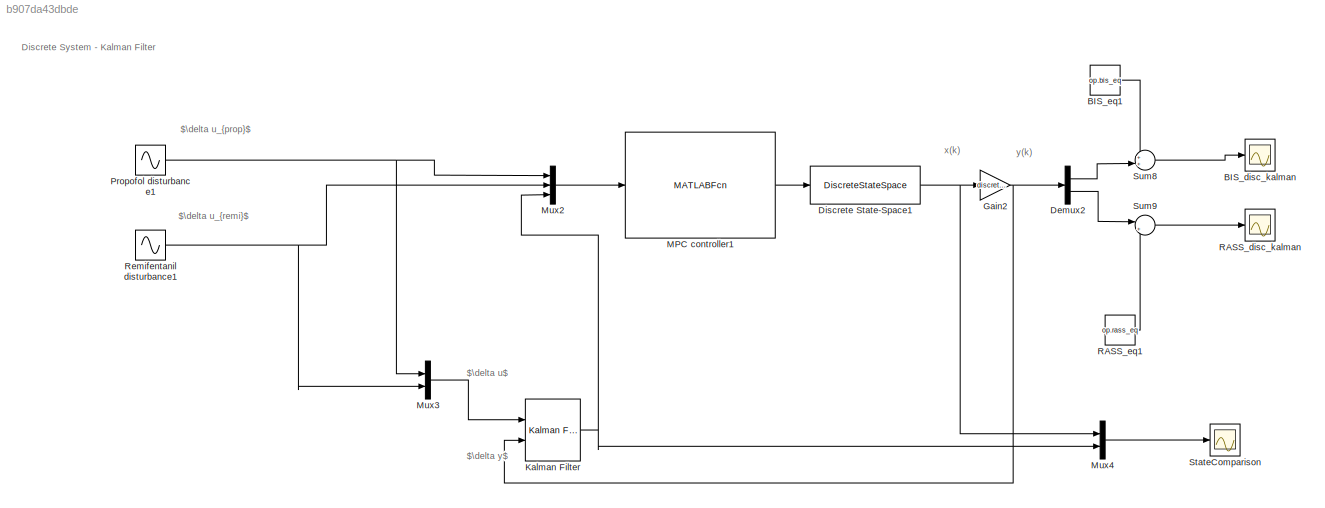
MODEL slx_b907da43dbde
KIND model
CONFIG AbsTol = auto
CONFIG EnableMultiTasking = off
CONFIG FixedStep = auto
CONFIG MaxStep = auto
CONFIG MinStep = auto
CONFIG RelTol = 1e-3
CONFIG SampleTimeConstraint = Unconstrained
CONFIG SolverName = VariableStepAuto
CONFIG StartTime = 0.0
CONFIG StopTime = 10.0
BLOCK [Scope] BIS_disc_kalman
  Floating = off
  NumInputPorts = 1
  Ports = [1]
  ScopeSpecificationString = Simulink.scopes.TimeScopeBlockCfg('CurrentConfiguration', extmgr.ConfigurationSet(extmgr.Configuration('Core','General UI',true),extmgr.Configuration('Core','Source UI',true),extmgr.Configuration('Sources','WiredSimulink',true,'DataLoggingVariableName','BIS_kalman','DataLogging',true,'DataLoggingSaveFormat','StructureWithTime'),extmgr.Configuration('Visuals','Time Domain',true,'SerializedDisplays'...<+1432ch>
BLOCK [Constant] BIS_eq1
  Value = op.bis_eq
BLOCK [Demux] Demux2
  Outputs = 2
  Ports = [1, 2]
BLOCK [DiscreteStateSpace] Discrete State-Space1
  A = discreteModel.A
  B = discreteModel.B
  C = eye(size(discreteModel.A))
  D = zeros(size(discreteModel.A,1),size(discreteModel.B,2))
  SampleTime = info.Ts
BLOCK [Gain] Gain2
  Gain = discreteModel.C
  Multiplication = Matrix(K*u)
BLOCK [Reference] Kalman Filter  REF=ctrlSharedLib/Kalman Filter
  Ports = [2, 1]
  SourceBlock = ctrlSharedLib/Kalman Filter
  SourceProductBaseCode = CT,ID
  SourceType = ctrlKalmanFilter
BLOCK [MATLABFcn] MPC controller1
  MATLABFcn = myMPC_dist(u,condDiscMat,PH)
  OutputDimensions = 2
  Ports = [1, 1]
BLOCK [Mux] Mux2
  DisplayOption = bar
  Inputs = 3
  Ports = [3, 1]
BLOCK [Mux] Mux3
  DisplayOption = bar
  Inputs = 2
  Ports = [2, 1]
BLOCK [Mux] Mux4
  DisplayOption = bar
  Inputs = 2
  Ports = [2, 1]
BLOCK [Sin] Propofol disturbance1
  Amplitude = 0.3*op.propofol_eq
  Frequency = 1/500
  Ports = [0, 1]
  SampleTime = info.Ts
BLOCK [Scope] RASS_disc_kalman
  Floating = off
  NumInputPorts = 1
  Ports = [1]
  ScopeSpecificationString = Simulink.scopes.TimeScopeBlockCfg('CurrentConfiguration', extmgr.ConfigurationSet(extmgr.Configuration('Core','General UI',true),extmgr.Configuration('Core','Source UI',true),extmgr.Configuration('Sources','WiredSimulink',true,'DataLoggingVariableName','RASS_kalman','DataLogging',true,'DataLoggingSaveFormat','StructureWithTime'),extmgr.Configuration('Visuals','Time Domain',true,'SerializedDisplays...<+1429ch>
BLOCK [Constant] RASS_eq1
  Value = op.rass_eq
BLOCK [Sin] Remifentanil disturbance1
  Amplitude = 0.3*op.remifentanil_eq
  Frequency = 1/700
  Ports = [0, 1]
  SampleTime = info.Ts
BLOCK [Scope] StateComparison
  Floating = off
  NumInputPorts = 1
  Ports = [1]
  ScopeSpecificationString = Simulink.scopes.TimeScopeBlockCfg('CurrentConfiguration', extmgr.ConfigurationSet(extmgr.Configuration('Core','General UI',true),extmgr.Configuration('Core','Source UI',true),extmgr.Configuration('Sources','WiredSimulink',true,'DataLogging',true,'DataLoggingSaveFormat','StructureWithTime'),extmgr.Configuration('Visuals','Time Domain',true,'SerializedDisplays',{struct('MinYLimReal','-69.64546','Max...<+1867ch>
BLOCK [Sum] Sum8
  Inputs = ++|
  Ports = [2, 1]
BLOCK [Sum] Sum9
  Inputs = |++
  Ports = [2, 1]
ANNOTATION (root): Discrete System - Kalman Filter
ANNOTATION (root): $\delta u$
ANNOTATION (root): $\delta u_{prop}$
ANNOTATION (root): $\delta u_{remi}$
ANNOTATION (root): $\delta y$
ANNOTATION (root): x(k)
ANNOTATION (root): y(k)
LINE BIS_eq1:1 -> Sum8:1
LINE Demux2:1 -> Sum8:2
LINE Demux2:2 -> Sum9:1
NET Discrete State-Space1:1 -> Gain2:1, Mux4:1
NET Gain2:1 -> Demux2:1, Kalman Filter:2
NET Kalman Filter:1 -> Mux2:3, Mux4:2
LINE MPC controller1:1 -> Discrete State-Space1:1
LINE Mux2:1 -> MPC controller1:1
LINE Mux3:1 -> Kalman Filter:1
LINE Mux4:1 -> StateComparison:1
NET Propofol disturbance1:1 -> Mux2:1, Mux3:1
LINE RASS_eq1:1 -> Sum9:2
NET Remifentanil disturbance1:1 -> Mux2:2, Mux3:2
LINE Sum8:1 -> BIS_disc_kalman:1
LINE Sum9:1 -> RASS_disc_kalman:1
note: NET lines group one-source signal fan-out (src -> all destinations, sorted); 1:1 wires keep LINE
